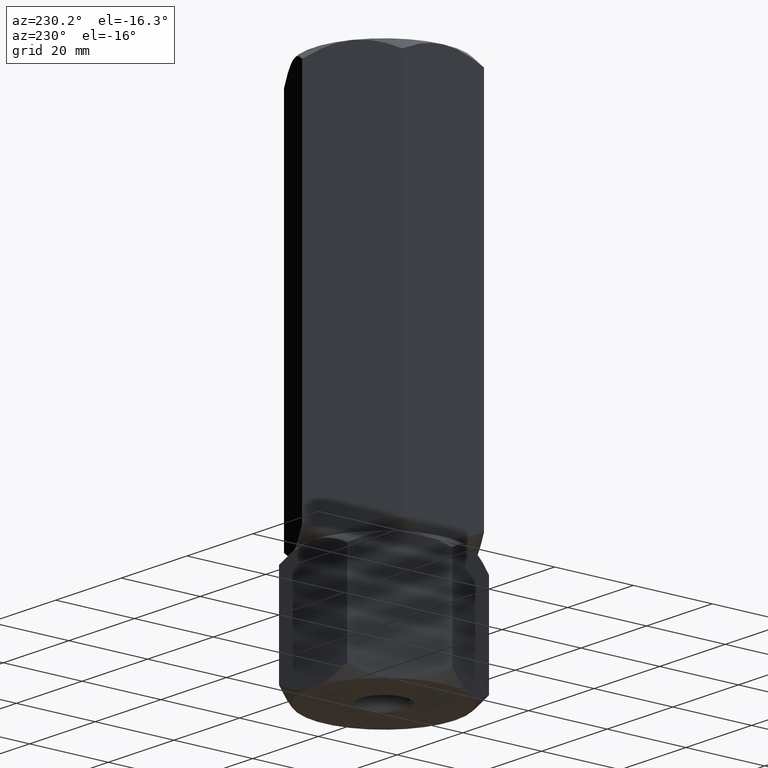
[diagram: clean part render]
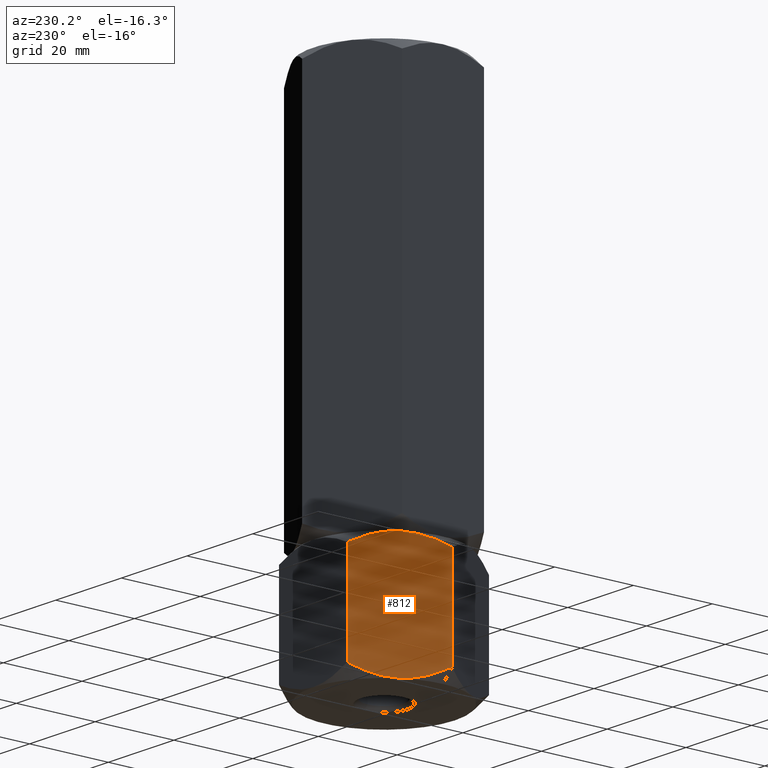
[diagram: same view with one face highlighted and labeled with its STEP entity id]
A machine part, auxiliary view. The second image highlights one B-rep face of the part: STEP entity #812.
In plain terms, the highlighted planar face has unit normal (0.866, -0.5, 0).
Its self-contained STEP definition (entity closure, byte-faithful):
#38 = VERTEX_POINT ( 'NONE', #1432 ) ;
#55 = CARTESIAN_POINT ( 'NONE',  ( -14.68463803553235181, 10.56546083169953398, 7.623296525288700093E-16 ) ) ;
#59 = CARTESIAN_POINT ( 'NONE',  ( -15.36090870263096875, 9.394125676616230436, 30.00000000000000711 ) ) ;
#63 = CARTESIAN_POINT ( 'NONE',  ( -19.97072132548310819, 1.409696000463982690, 28.02927867451694510 ) ) ;
#68 = ORIENTED_EDGE ( 'NONE', *, *, #1761, .F. ) ;
#79 = CARTESIAN_POINT ( 'NONE',  ( -14.44719758599053705, 10.97671975407794953, 29.86127740090142524 ) ) ;
#141 = EDGE_CURVE ( 'NONE', #1923, #673, #252, .T. ) ;
#145 = B_SPLINE_CURVE_WITH_KNOTS ( 'NONE', 3,
 ( #198, #825, #1457, #998, #63, #1325 ),
 .UNSPECIFIED., .F., .F.,
 ( 4, 2, 4 ),
 ( 0.01077282027732747241, 0.01612137750481873466, 0.02146993473231000038 ),
 .UNSPECIFIED. ) ;
#188 = VERTEX_POINT ( 'NONE', #1838 ) ;
#198 = CARTESIAN_POINT ( 'NONE',  ( -15.58845726811989607, 8.999999999999996447, 30.00000000000000000 ) ) ;
#201 = CARTESIAN_POINT ( 'NONE',  ( -12.04393988858690712, 15.13928418966203004, 1.272574701504243677 ) ) ;
#232 = DIRECTION ( 'NONE',  ( -0.000000000000000000, -0.000000000000000000, -1.000000000000000000 ) ) ;
#235 = CARTESIAN_POINT ( 'NONE',  ( -10.39230484541326582, 18.00000000000000000, 30.00000000000000000 ) ) ;
#252 = B_SPLINE_CURVE_WITH_KNOTS ( 'NONE', 3,
 ( #1146, #1804, #1962, #1019, #1341, #79, #993, #842, #59, #375 ),
 .UNSPECIFIED., .F., .F.,
 ( 4, 2, 2, 2, 4 ),
 ( 2.544307986796311447E-07, 0.005386537354063076870, 0.008079678815695276808, 0.009426249546511373742, 0.01077282027732747241 ),
 .UNSPECIFIED. ) ;
#273 = CARTESIAN_POINT ( 'NONE',  ( -20.78460969082652809, -3.512511347539742526E-15, 30.00000000000000000 ) ) ;
#295 = CARTESIAN_POINT ( 'NONE',  ( -15.58845726811989607, 8.999999999999996447, 0.000000000000000000 ) ) ;
#300 = EDGE_CURVE ( 'NONE', #1813, #188, #1735, .T. ) ;
#303 = CARTESIAN_POINT ( 'NONE',  ( -20.78460969082652809, -3.746502714695151746E-15, 27.21539030917348256 ) ) ;
#375 = CARTESIAN_POINT ( 'NONE',  ( -15.58845726811989607, 8.999999999999996447, 30.00000000000000000 ) ) ;
#396 = LINE ( 'NONE', #664, #899 ) ;
#445 = DIRECTION ( 'NONE',  ( -0.000000000000000000, -0.000000000000000000, -1.000000000000000000 ) ) ;
#480 = EDGE_LOOP ( 'NONE', ( #1489, #1990, #68, #720, #1458, #1752 ) ) ;
#664 = CARTESIAN_POINT ( 'NONE',  ( -10.39230484541326582, 18.00000000000000000, 30.00000000000000000 ) ) ;
#673 = VERTEX_POINT ( 'NONE', #2036 ) ;
#695 = DIRECTION ( 'NONE',  ( 0.4999999999999998335, 0.8660254037844387076, 0.000000000000000000 ) ) ;
#720 = ORIENTED_EDGE ( 'NONE', *, *, #300, .F. ) ;
#730 = LINE ( 'NONE', #273, #1468 ) ;
#812 = ADVANCED_FACE ( 'NONE', ( #1148 ), #1773, .F. ) ;
#825 = CARTESIAN_POINT ( 'NONE',  ( -16.49227650070744389, 7.434539168300454470, 30.00000000000000000 ) ) ;
#842 = CARTESIAN_POINT ( 'NONE',  ( -15.13208409062670157, 9.790461530629869458, 29.98266714352590867 ) ) ;
#855 = DIRECTION ( 'NONE',  ( 0.8660254037844387076, -0.4999999999999998335, 0.000000000000000000 ) ) ;
#898 = B_SPLINE_CURVE_WITH_KNOTS ( 'NONE', 3,
 ( #1791, #55, #1015, #201, #1479, #1619 ),
 .UNSPECIFIED., .F., .F.,
 ( 4, 2, 4 ),
 ( 0.01077282027732746894, 0.01612137750481873466, 0.02146993473231000038 ),
 .UNSPECIFIED. ) ;
#899 = VECTOR ( 'NONE', #232, 1000.000000000000000 ) ;
#929 = CARTESIAN_POINT ( 'NONE',  ( -16.04483044561310479, 8.209538469370125213, 0.01733285647408998667 ) ) ;
#993 = CARTESIAN_POINT ( 'NONE',  ( -14.67378923359658494, 10.58425150785354241, 29.91305310988184374 ) ) ;
#998 = CARTESIAN_POINT ( 'NONE',  ( -19.13297464765288680, 2.860715810337959297, 28.72742529849575277 ) ) ;
#1015 = CARTESIAN_POINT ( 'NONE',  ( -13.79618737047370480, 12.10430252359947900, 0.2763959071215847385 ) ) ;
#1019 = CARTESIAN_POINT ( 'NONE',  ( -13.33524813246347129, 12.90267270303527525, 29.46291444417098404 ) ) ;
#1080 = CARTESIAN_POINT ( 'NONE',  ( -15.81600583360882162, 8.605874323383764235, 9.073605160531897768E-16 ) ) ;
#1103 = CARTESIAN_POINT ( 'NONE',  ( -19.13650452186756823, 2.854601888853808056, 1.277383077889870266 ) ) ;
#1113 = CARTESIAN_POINT ( 'NONE',  ( -17.84166640377631907, 5.097327296964719423, 0.5370855558290095200 ) ) ;
#1146 = CARTESIAN_POINT ( 'NONE',  ( -10.39230484541326582, 18.00000000000000000, 27.21539030917348256 ) ) ;
#1148 = FACE_OUTER_BOUND ( 'NONE', #480, .T. ) ;
#1238 = CARTESIAN_POINT ( 'NONE',  ( -16.50312530264320543, 7.415748492146450488, 0.08694689011815480428 ) ) ;
#1282 = VERTEX_POINT ( 'NONE', #303 ) ;
#1325 = CARTESIAN_POINT ( 'NONE',  ( -20.78460969082652809, -3.746502714695151746E-15, 27.21539030917348256 ) ) ;
#1341 = CARTESIAN_POINT ( 'NONE',  ( -13.77442836864821984, 12.14199022028319774, 29.65943689774473313 ) ) ;
#1359 = EDGE_CURVE ( 'NONE', #673, #1282, #145, .T. ) ;
#1372 = AXIS2_PLACEMENT_3D ( 'NONE', #235, #855, #695 ) ;
#1397 = CARTESIAN_POINT ( 'NONE',  ( -19.96977770663490759, 1.411330396252044483, 1.969777706634901815 ) ) ;
#1432 = CARTESIAN_POINT ( 'NONE',  ( -10.39230484541326582, 18.00000000000000000, 2.784609690826517436 ) ) ;
#1457 = CARTESIAN_POINT ( 'NONE',  ( -17.38072716576608912, 5.895697476400520110, 29.72360409287841776 ) ) ;
#1458 = ORIENTED_EDGE ( 'NONE', *, *, #1814, .F. ) ;
#1468 = VECTOR ( 'NONE', #445, 1000.000000000000000 ) ;
#1479 = CARTESIAN_POINT ( 'NONE',  ( -11.20619321075668573, 16.59030399953601886, 1.970721325483050235 ) ) ;
#1489 = ORIENTED_EDGE ( 'NONE', *, *, #141, .F. ) ;
#1524 = CARTESIAN_POINT ( 'NONE',  ( -20.78460969082652809, -3.746502714695151746E-15, 2.784609690826518325 ) ) ;
#1554 = CARTESIAN_POINT ( 'NONE',  ( -10.39230484541326582, 18.00000000000000000, 27.21539030917348256 ) ) ;
#1579 = CARTESIAN_POINT ( 'NONE',  ( -20.78460969082652809, -3.746502714695151746E-15, 2.784609690826518325 ) ) ;
#1619 = CARTESIAN_POINT ( 'NONE',  ( -10.39230484541326582, 18.00000000000000000, 2.784609690826517436 ) ) ;
#1735 = B_SPLINE_CURVE_WITH_KNOTS ( 'NONE', 3,
 ( #1579, #1397, #1103, #1113, #1737, #2018, #1238, #929, #1080, #295 ),
 .UNSPECIFIED., .F., .F.,
 ( 4, 2, 2, 2, 4 ),
 ( 2.544307986798773666E-07, 0.005386537354063075135, 0.008079678815695271604, 0.009426249546511372007, 0.01077282027732746894 ),
 .UNSPECIFIED. ) ;
#1737 = CARTESIAN_POINT ( 'NONE',  ( -17.40248616759157230, 5.858009779716798704, 0.3405631022552688125 ) ) ;
#1744 = EDGE_CURVE ( 'NONE', #1923, #38, #396, .T. ) ;
#1752 = ORIENTED_EDGE ( 'NONE', *, *, #1359, .F. ) ;
#1761 = EDGE_CURVE ( 'NONE', #188, #38, #898, .T. ) ;
#1773 = PLANE ( 'NONE',  #1372 ) ;
#1791 = CARTESIAN_POINT ( 'NONE',  ( -15.58845726811989607, 8.999999999999996447, 0.000000000000000000 ) ) ;
#1804 = CARTESIAN_POINT ( 'NONE',  ( -11.20713682960488988, 16.58866960374795241, 28.03022229336509241 ) ) ;
#1813 = VERTEX_POINT ( 'NONE', #1524 ) ;
#1814 = EDGE_CURVE ( 'NONE', #1282, #1813, #730, .T. ) ;
#1838 = CARTESIAN_POINT ( 'NONE',  ( -15.58845726811989607, 8.999999999999996447, 0.000000000000000000 ) ) ;
#1923 = VERTEX_POINT ( 'NONE', #1554 ) ;
#1962 = CARTESIAN_POINT ( 'NONE',  ( -12.04041001437222569, 15.14539811114618573, 28.72261692211012019 ) ) ;
#1990 = ORIENTED_EDGE ( 'NONE', *, *, #1744, .T. ) ;
#2018 = CARTESIAN_POINT ( 'NONE',  ( -16.72971695024925154, 7.023280245922045140, 0.1387225990985769819 ) ) ;
#2036 = CARTESIAN_POINT ( 'NONE',  ( -15.58845726811989607, 8.999999999999996447, 30.00000000000000000 ) ) ;